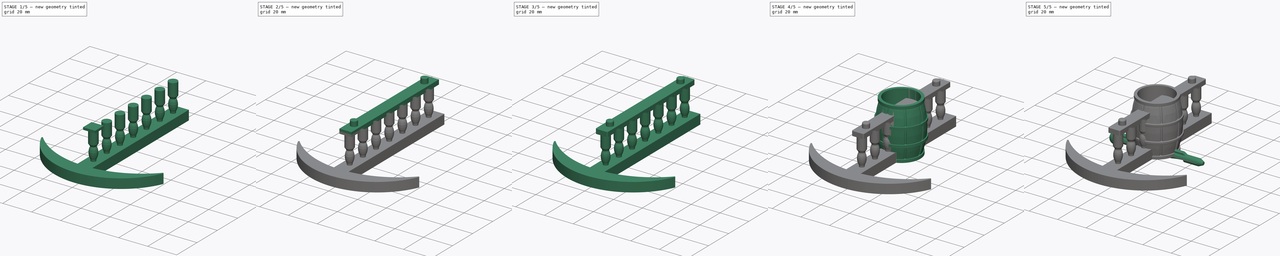
[diagram: build sequence overview — one tinted view per stage of 5, left to right]
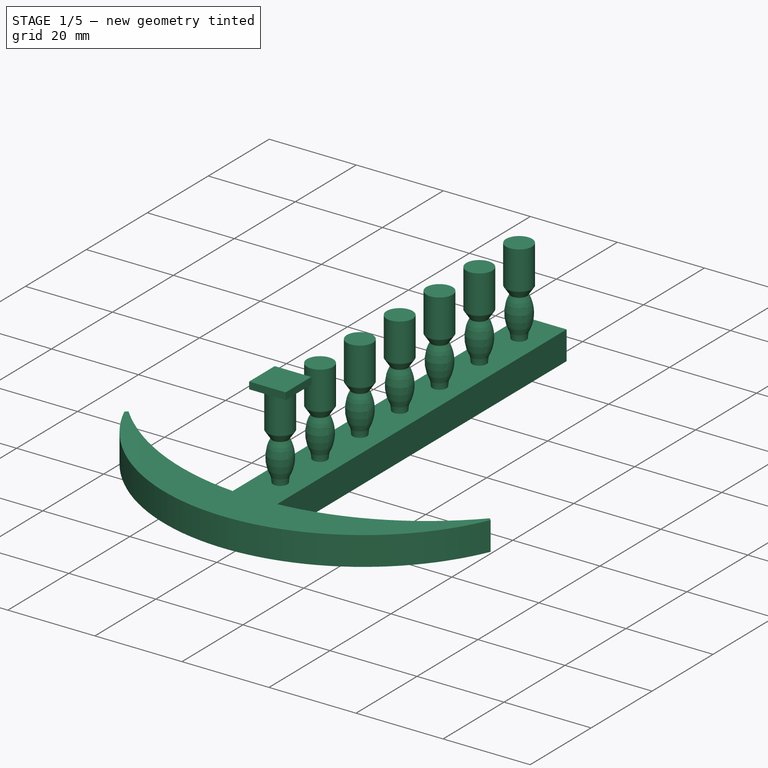
[diagram: stage 1 of 5 — iso view after this stage's code; geometry added in this stage tinted green]
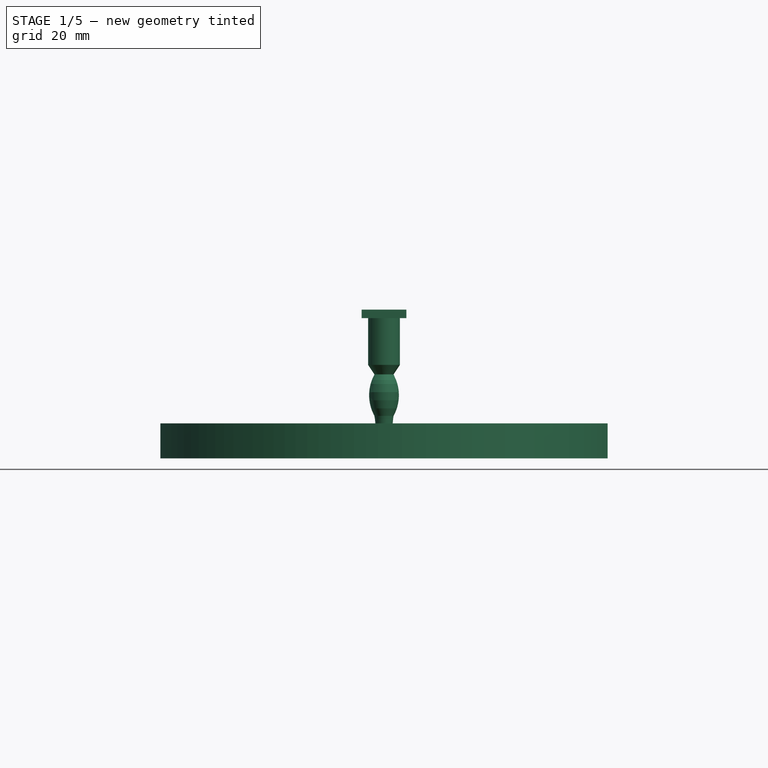
[diagram: stage 1 of 5 — front view after this stage's code; geometry added in this stage tinted green]
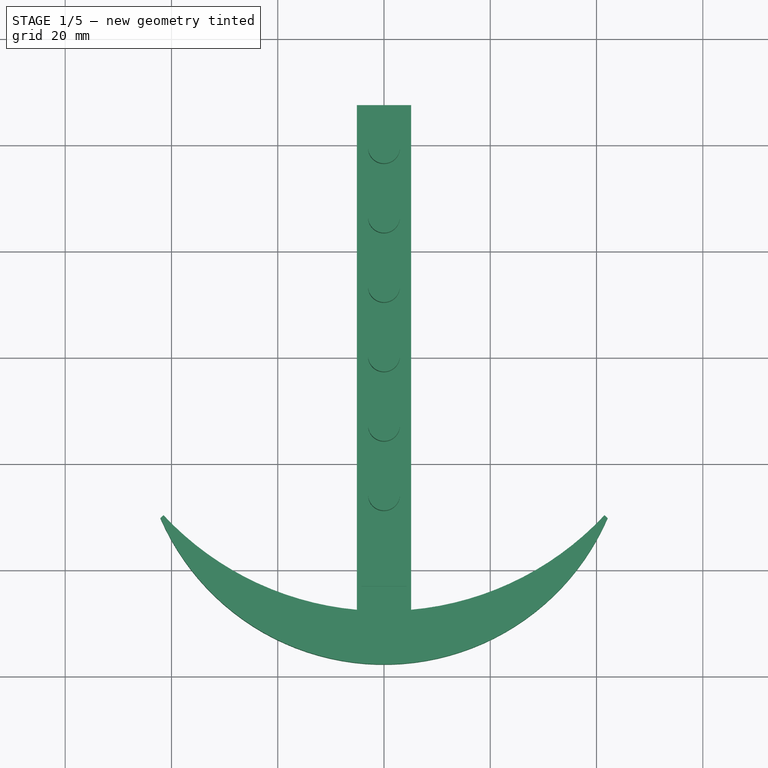
[diagram: stage 1 of 5 — top view after this stage's code; geometry added in this stage tinted green]
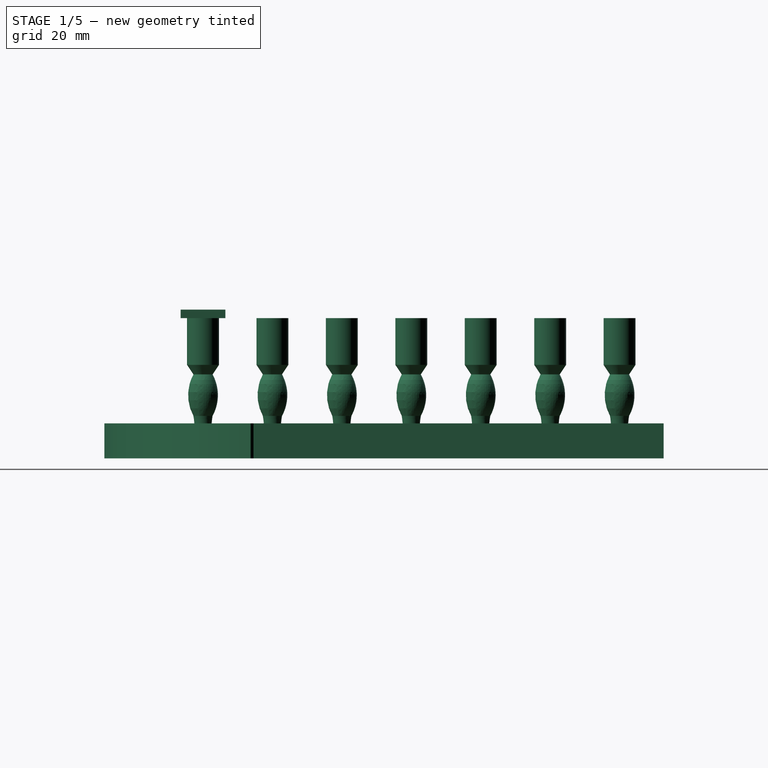
[diagram: stage 1 of 5 — right view after this stage's code; geometry added in this stage tinted green]
FCSTD DOCUMENT  (FreeCAD 0.20R29410 (Git))
Label: parts
License: All rights reserved
LicenseURL: http://en.wikipedia.org/wiki/All_rights_reserved
objects: Sketcher::SketchObject×14, PartDesign::Fillet×14, PartDesign::Pad×7, PartDesign::Revolution×4, PartDesign::Body×4, PartDesign::LinearPattern×4, PartDesign::Pocket×3, PartDesign::PolarPattern×1
note: 79 computed .brp shape members not serialized (recipe doc carries the construction recipe); baked Part::Feature solids carry a one-line shape summary decoded from their .brp

FEATURE [PartDesign::Body] Body001  label="barrel"
  Group = -> [Sketch004,Revolution001,Sketch005,Pocket002,PolarPattern,Sketch006,Revolution002,LinearPattern,Fillet001,Fillet002,Fillet003]
  Origin = -> Origin001
  Tip = -> Fillet003
FEATURE [Sketcher::SketchObject] Sketch007
  FullyConstrained = true
  MapMode = 5
  Placement = pos=(0,0,0) rot=(0.57735,0.57735,0.57735;2.0944rad)
  Support = -> [YZ_Plane002]
  sketch-geometry (4):
    g0: LineSegment StartX=-45 StartY=2 StartZ=0 EndX=45 EndY=2 EndZ=0
    g1: LineSegment StartX=45 StartY=2 StartZ=0 EndX=45 EndY=0 EndZ=0
    g2: LineSegment StartX=45 StartY=0 StartZ=0 EndX=-45 EndY=0 EndZ=0
    g3: LineSegment StartX=-45 StartY=0 StartZ=0 EndX=-45 EndY=2 EndZ=0
  constraints (11):
    c: Coincident(g0,g1)
    c: Coincident(g1,g2)
    c: Coincident(g2,g3)
    c: Coincident(g3,g0)
    c: Horizontal(g0)
    c: Vertical(g1)
    c: Vertical(g3)
    c: Symmetric(g2,g1,g-2)
    c: PointOnObject(g1,g-1)
    c: DistanceX(g2,g2) = 90
    c: DistanceY(g1,g1) = 2
FEATURE [PartDesign::Pad] Pad001
  Direction = (1,-2e-16,3e-16)
  Length = 6
  Length2 = 10
  Midplane = true
  Placement = pos=(0,0,0) rot=(0.57735,0.57735,0.57735;2.0944rad)
  Profile = -> Sketch007
  ReferenceAxis = -> Sketch007 [N_Axis]
  Type = 0
FEATURE [Sketcher::SketchObject] Sketch008
  FullyConstrained = true
  MapMode = 5
  Placement = pos=(0,0,0) rot=(0.57735,0.57735,0.57735;2.0944rad)
  Support = -> [YZ_Plane002]
  expr: Constraints[8] = 45 - 3
  sketch-geometry (4):
    g0: LineSegment StartX=-42 StartY=3.4 StartZ=0 EndX=-36.4 EndY=3.4 EndZ=0
    g1: LineSegment StartX=-36.4 StartY=3.4 StartZ=0 EndX=-36.4 EndY=2 EndZ=0
    g2: LineSegment StartX=-36.4 StartY=2 StartZ=0 EndX=-42 EndY=2 EndZ=0
    g3: LineSegment StartX=-42 StartY=2 StartZ=0 EndX=-42 EndY=3.4 EndZ=0
  constraints (12):
    c: Coincident(g0,g1)
    c: Coincident(g1,g2)
    c: Coincident(g2,g3)
    c: Coincident(g3,g0)
    c: Horizontal(g0)
    c: Horizontal(g2)
    c: Vertical(g1)
    c: Vertical(g3)
    c: DistanceX(g2,g-1) = 42
    c: DistanceX(g0,g0) = 5.6
    c: DistanceY(g1,g1) = 1.4
    c: DistanceY(g2) = 2
FEATURE [PartDesign::Pad] Pad002
  BaseFeature = -> Pad001
  Direction = (1,-2e-16,3e-16)
  Length = 5.6
  Length2 = 10
  Midplane = true
  Placement = pos=(0,0,0) rot=(0.57735,0.57735,0.57735;2.0944rad)
  Profile = -> Sketch008
  ReferenceAxis = -> Sketch008 [N_Axis]
  Type = 0
FEATURE [PartDesign::LinearPattern] LinearPattern001
  BaseFeature = -> Pad002
  Direction = -> Sketch008 [H_Axis]
  Length = 78.4
  Occurrences = 7
  Originals = -> [Pad002]
  Placement = pos=(0,0,0) rot=(0.57735,0.57735,0.57735;2.0944rad)
  expr: Length = 90 - 6 - 5.6
FEATURE [Sketcher::SketchObject] Sketch009
  AttachmentOffset = pos=(-39.2,0,0) rot=(0,0,1;0rad)
  FullyConstrained = true
  MapMode = 5
  Placement = pos=(-8.7e-15,-39.2,8.7e-15) rot=(0.57735,0.57735,0.57735;2.0944rad)
  Support = -> [YZ_Plane002]
  sketch-geometry (9):
    g0: LineSegment StartX=0 StartY=26.4 StartZ=0 EndX=3 EndY=26.4 EndZ=0
    g1: LineSegment StartX=3 StartY=26.4 StartZ=0 EndX=3 EndY=17.6 EndZ=0
    g2: LineSegment StartX=3 StartY=17.6 StartZ=0 EndX=1.8 EndY=15.8 EndZ=0
    g3: LineSegment StartX=0 StartY=26.4 StartZ=0 EndX=0 EndY=3.4 EndZ=0
    g4: LineSegment StartX=0 StartY=3.4 StartZ=0 EndX=1.8 EndY=3.4 EndZ=0
    g5: ArcOfCircle CenterX=-5.305 CenterY=11.9 CenterZ=0 NormalX=0 NormalY=0 NormalZ=1 AngleXU=0 Radius=8.105 StartAngle=5.78118 EndAngle=6.78519
    g6: ArcOfCircle CenterX=14.925 CenterY=5.7 CenterZ=0 NormalX=0 NormalY=0 NormalZ=1 AngleXU=0 Radius=13.325 StartAngle=2.96812 EndAngle=3.31507
    g7: GeomPoint X=2.8 Y=11.9 Z=0
    g8: GeomPoint X=1.6 Y=5.7 Z=0
  constraints (27):
    c: Horizontal(g0)
    c: Coincident(g0,g1)
    c: Vertical(g1)
    c: Coincident(g1,g2)
    c: Coincident(g0,g3)
    c: Vertical(g3)
    c: Coincident(g3,g4)
    c: Horizontal(g4)
    c: Coincident(g5,g2)
    c: Coincident(g6,g5)
    c: Coincident(g6,g4)
    c: PointOnObject(g3,g-2)
    c: DistanceY(g-1,g3) = 3.4
    c: DistanceX(g3,g4) = 1.8
    c: DistanceY(g4,g5) = 4.6
    c: Vertical(g4,g5)
    c: DistanceY(g3,g2) = 12.4
    c: DistanceX(g3,g2) = 1.8
    c: PointOnObject(g7,g5)
    c: Horizontal(g7,g5)
    c: DistanceX(g3,g7) = 2.8
    c: PointOnObject(g8,g6)
    c: Horizontal(g8,g6)
    c: DistanceX(g3,g8) = 1.6
    c: DistanceY(g2,g2) = 1.8
    c: DistanceX(g0,g0) = 3
    c: DistanceY(g0) = 26.4
FEATURE [PartDesign::Revolution] Revolution003
  Angle = 360
  Axis = (-2e-16,3e-16,1)
  Base = (-8.7e-15,-39.2,8.7e-15)
  BaseFeature = -> LinearPattern001
  Placement = pos=(0,0,0) rot=(0.57735,0.57735,0.57735;2.0944rad)
  Profile = -> Sketch009
  ReferenceAxis = -> Sketch009 [V_Axis]
  Reversed = true
FEATURE [PartDesign::LinearPattern] LinearPattern002
  BaseFeature = -> Revolution003
  Direction = -> Sketch009 [H_Axis]
  Length = 78.4
  Occurrences = 7
  Originals = -> [Revolution003]
  Placement = pos=(0,0,0) rot=(0.57735,0.57735,0.57735;2.0944rad)
  expr: Length = 90 - 6 - 5.6
FEATURE [Sketcher::SketchObject] Sketch010
  ExternalGeometry = -> [LinearPattern002]
  FullyConstrained = true
  MapMode = 5
  Placement = pos=(0,0,0) rot=(0.57735,0.57735,0.57735;2.0944rad)
  Support = -> [YZ_Plane002]
  expr: Constraints[12] = 45 - 3 - 5.6 / 2
  expr: Constraints[8] = 29.6 - 1.6
  sketch-geometry (5):
    g0: LineSegment StartX=-43.4 StartY=28 StartZ=0 EndX=-35 EndY=28 EndZ=0
    g1: LineSegment StartX=-35 StartY=28 StartZ=0 EndX=-35 EndY=26.4 EndZ=0
    g2: LineSegment StartX=-35 StartY=26.4 StartZ=0 EndX=-43.4 EndY=26.4 EndZ=0
    g3: LineSegment StartX=-43.4 StartY=26.4 StartZ=0 EndX=-43.4 EndY=28 EndZ=0
    g4: LineSegment StartX=-39.2 StartY=28 StartZ=0 EndX=-39.2 EndY=26.4 EndZ=0
  constraints (15):
    c: Coincident(g0,g1)
    c: Coincident(g1,g2)
    c: Coincident(g2,g3)
    c: Coincident(g3,g0)
    c: Horizontal(g0)
    c: Horizontal(g2)
    c: Vertical(g1)
    c: Vertical(g3)
    c: DistanceY(g0) = 28
    c: PointOnObject(g4,g0)
    c: PointOnObject(g4,g2)
    c: Symmetric(g0,g0,g4)
    c: DistanceX(g4,g-1) = 39.2
    c: DistanceX(g2,g2) = 8.4
    c: PointOnObject(g-3,g2)
FEATURE [PartDesign::Pad] Pad003
  BaseFeature = -> LinearPattern002
  Direction = (1,-2e-16,3e-16)
  Length = 8.4
  Length2 = 10
  Midplane = true
  Placement = pos=(0,0,0) rot=(0.57735,0.57735,0.57735;2.0944rad)
  Profile = -> Sketch010
  ReferenceAxis = -> Sketch010 [N_Axis]
  Type = 0
FEATURE [PartDesign::Body] Body002  label="railing"
  Group = -> [Sketch007,Pad001,Sketch008,Pad002,LinearPattern001,Sketch009,Revolution003,LinearPattern002,Sketch010,Pad003,LinearPattern003,Sketch011,Pad004,Sketch012,Pad005,Fillet004,Fillet005,Fillet006,Fillet007,Fillet008,Fillet009,Fillet010,Fillet011,Fillet012,Fillet013]
  Origin = -> Origin002
  Tip = -> Fillet013
FEATURE [Sketcher::SketchObject] Sketch013
  FullyConstrained = true
  MapMode = 5
  Support = -> [XY_Plane003]
  sketch-geometry (10):
    g0: LineSegment StartX=-5.1 StartY=47.5 StartZ=0 EndX=5.1 EndY=47.5 EndZ=0
    g1: LineSegment StartX=5.1 StartY=47.5 StartZ=0 EndX=5.1 EndY=-47.5 EndZ=0
    g2: LineSegment StartX=5.1 StartY=-47.5 StartZ=0 EndX=-5.1 EndY=-47.5 EndZ=0
    g3: LineSegment StartX=-5.1 StartY=-47.5 StartZ=0 EndX=-5.1 EndY=47.5 EndZ=0
    g4: ArcOfCircle CenterX=-2.6e-15 CenterY=9.04719 CenterZ=0 NormalX=0 NormalY=0 NormalZ=1 AngleXU=0 Radius=56.7767 StartAngle=3.8927 EndAngle=4.62244
    g5: ArcOfCircle CenterX=0 CenterY=-11.8573 CenterZ=0 NormalX=0 NormalY=0 NormalZ=1 AngleXU=0 Radius=45.9268 StartAngle=3.55354 EndAngle=5.87124
    g6: GeomPoint X=5.1 Y=-57.5 Z=0
    g7: LineSegment StartX=41.5 StartY=-29.7 StartZ=0 EndX=42.0847 EndY=-30.246 EndZ=0
    g8: LineSegment StartX=-41.5 StartY=-29.7 StartZ=0 EndX=-42.0847 EndY=-30.246 EndZ=0
    g9: ArcOfCircle CenterX=-2.6e-15 CenterY=9.04719 CenterZ=0 NormalX=0 NormalY=0 NormalZ=1 AngleXU=0 Radius=56.7767 StartAngle=4.80234 EndAngle=5.53208
  constraints (29):
    c: Coincident(g0,g1)
    c: Coincident(g1,g2)
    c: Coincident(g2,g3)
    c: Coincident(g3,g0)
    c: Horizontal(g2)
    c: Vertical(g3)
    c: Symmetric(g0,g0,g-2)
    c: DistanceX(g0,g0) = 10.2
    c: DistanceY(g1,g1) = 95
    c: Symmetric(g0,g1,g-1)
    c: PointOnObject(g3,g4)
    c: DistanceX(g4,g9) = 83
    c: Horizontal(g4,g9)
    c: DistanceY(g3,g4) = 17.8
    c: PointOnObject(g5,g-2)
    c: PointOnObject(g6,g5)
    c: Vertical(g6,g1)
    c: DistanceY(g6,g1) = 10
    c: Coincident(g7,g9)
    c: Coincident(g7,g5)
    c: Coincident(g8,g4)
    c: Coincident(g8,g5)
    c: Perpendicular(g4,g8)
    c: Perpendicular(g4,g7)
    c: Equal(g4,g9)
    c: PointOnObject(g4,g2)
    c: Coincident(g9,g1)
    c: Coincident(g4,g9)
    c: Distance(g7) = 0.8
FEATURE [PartDesign::Pad] Pad006
  Direction = (0,0,1)
  Length = 6.6
  Length2 = 10
  Profile = -> Sketch013
  ReferenceAxis = -> Sketch013 [N_Axis]
  Type = 0
FEATURE [PartDesign::Body] Body003  label="anchor_main"
  Group = -> [Sketch013,Pad006]
  Origin = -> Origin003
  Tip = -> Pad006
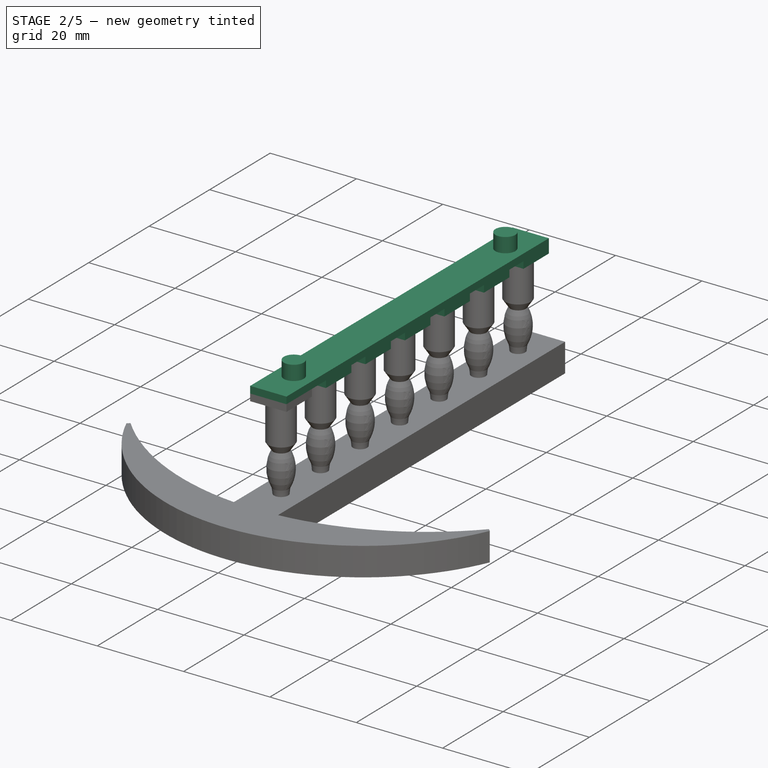
[diagram: stage 2 of 5 — iso view after this stage's code; geometry added in this stage tinted green]
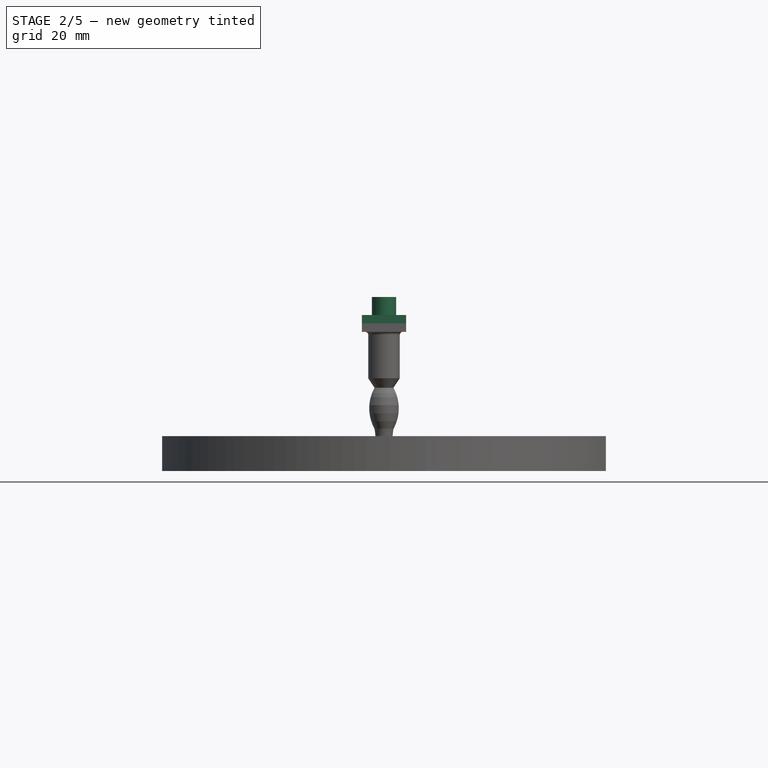
[diagram: stage 2 of 5 — front view after this stage's code; geometry added in this stage tinted green]
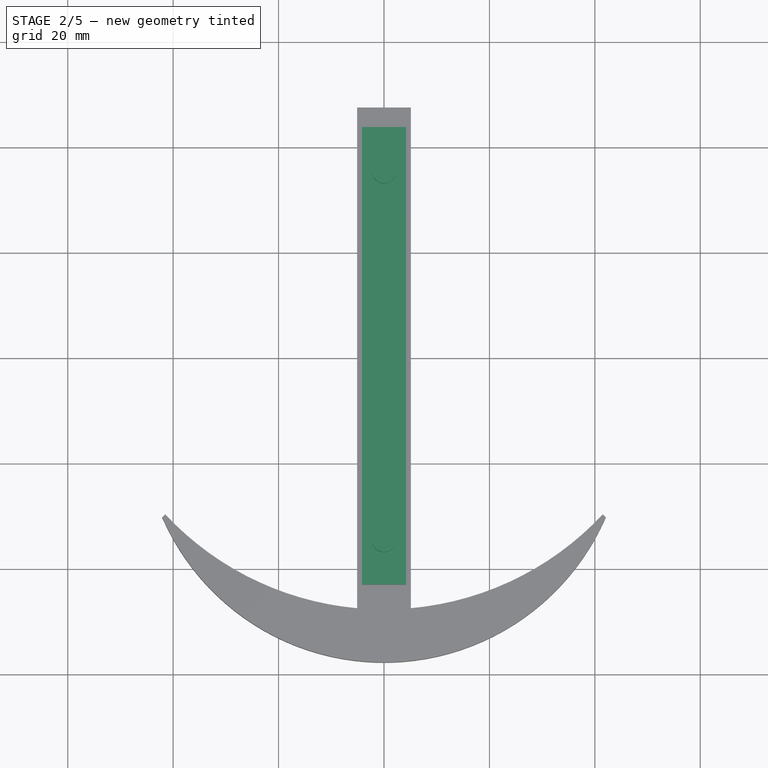
[diagram: stage 2 of 5 — top view after this stage's code; geometry added in this stage tinted green]
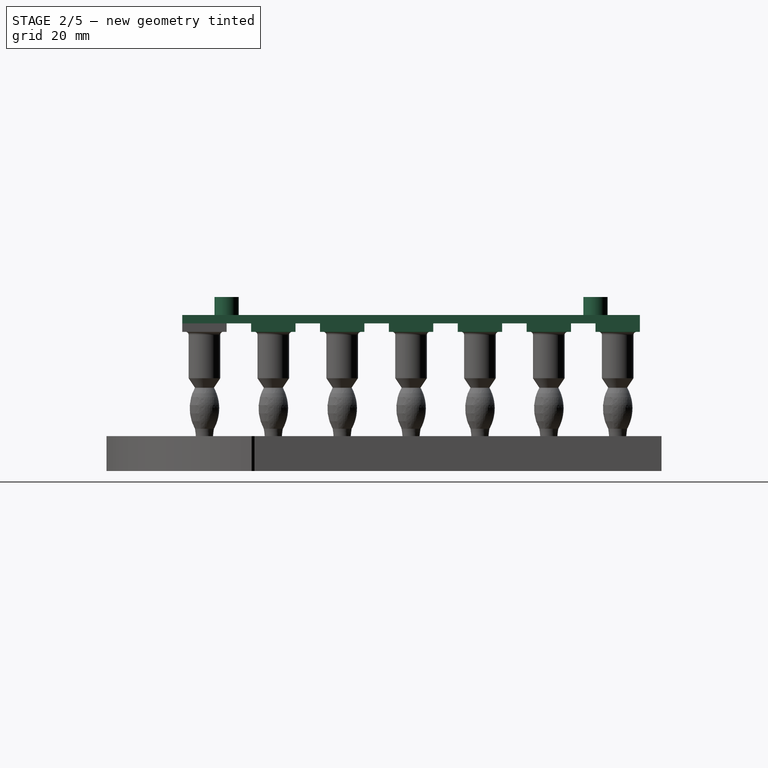
[diagram: stage 2 of 5 — right view after this stage's code; geometry added in this stage tinted green]
FEATURE [PartDesign::LinearPattern] LinearPattern003
  BaseFeature = -> Pad003
  Direction = -> Sketch010 [H_Axis]
  Length = 78.4
  Occurrences = 7
  Originals = -> [Pad003]
  Placement = pos=(0,0,0) rot=(0.57735,0.57735,0.57735;2.0944rad)
  expr: Length = 90 - 6 - 5.6
FEATURE [Sketcher::SketchObject] Sketch011
  ExternalGeometry = -> [LinearPattern003]
  FullyConstrained = true
  MapMode = 5
  Placement = pos=(0,0,0) rot=(0.57735,0.57735,0.57735;2.0944rad)
  Support = -> [YZ_Plane002]
  sketch-geometry (4):
    g0: LineSegment StartX=-43.4 StartY=29.6 StartZ=0 EndX=43.4 EndY=29.6 EndZ=0
    g1: LineSegment StartX=43.4 StartY=29.6 StartZ=0 EndX=43.4 EndY=28 EndZ=0
    g2: LineSegment StartX=43.4 StartY=28 StartZ=0 EndX=-43.4 EndY=28 EndZ=0
    g3: LineSegment StartX=-43.4 StartY=28 StartZ=0 EndX=-43.4 EndY=29.6 EndZ=0
  constraints (10):
    c: Coincident(g0,g1)
    c: Coincident(g1,g2)
    c: Coincident(g2,g3)
    c: Coincident(g3,g0)
    c: Horizontal(g2)
    c: Vertical(g1)
    c: Vertical(g3)
    c: Symmetric(g0,g0,g-2)
    c: Coincident(g2,g-3)
    c: DistanceY(g1,g1) = 1.6
FEATURE [PartDesign::Pad] Pad004
  BaseFeature = -> LinearPattern003
  Direction = (1,-2e-16,3e-16)
  Length = 8.4
  Length2 = 10
  Midplane = true
  Placement = pos=(0,0,0) rot=(0.57735,0.57735,0.57735;2.0944rad)
  Profile = -> Sketch011
  ReferenceAxis = -> Sketch011 [N_Axis]
  Type = 0
FEATURE [Sketcher::SketchObject] Sketch012
  AttachmentOffset = pos=(0,0,29.6) rot=(0,0,1;0rad)
  FullyConstrained = true
  MapMode = 5
  Placement = pos=(0,0,29.6) rot=(0,0,1;0rad)
  Support = -> [XY_Plane002]
  sketch-geometry (2):
    g0: Circle CenterX=0 CenterY=35 CenterZ=0 NormalX=0 NormalY=0 NormalZ=1 AngleXU=0 Radius=2.3
    g1: Circle CenterX=0 CenterY=-35 CenterZ=0 NormalX=0 NormalY=0 NormalZ=1 AngleXU=0 Radius=2.3
  constraints (5):
    c: PointOnObject(g0,g-2)
    c: Symmetric(g1,g0,g-1)
    c: Equal(g1,g0)
    c: Diameter(g0) = 4.6
    c: DistanceY(g1,g0) = 70
FEATURE [PartDesign::Pad] Pad005
  BaseFeature = -> Pad004
  Direction = (0,0,1)
  Length = 3.4
  Length2 = 10
  Placement = pos=(0,0,0) rot=(0.57735,0.57735,0.57735;2.0944rad)
  Profile = -> Sketch012
  ReferenceAxis = -> Sketch012 [N_Axis]
  Type = 0
FEATURE [PartDesign::Fillet] Fillet004
  Base = -> Pad005 [Edge220,Edge219,Edge223,Edge221]
  BaseFeature = -> Pad005
  Placement = pos=(0,0,0) rot=(0.57735,0.57735,0.57735;2.0944rad)
  Radius = 1.8
  SupportTransform = false
  UseAllEdges = false
FEATURE [PartDesign::Fillet] Fillet005
  Base = -> Fillet004 [Edge27,Edge10,Edge14,Edge18,Edge22,Edge30,Edge34,Edge26,Edge12,Edge16,Edge20,Edge24,Edge32,Edge36]
  BaseFeature = -> Fillet004
  Placement = pos=(0,0,0) rot=(0.57735,0.57735,0.57735;2.0944rad)
  Radius = 0.6
  SupportTransform = false
  UseAllEdges = false
FEATURE [PartDesign::Fillet] Fillet006
  Base = -> Fillet005 [Edge228,Edge230,Edge232,Edge234,Edge236,Edge238,Edge240]
  BaseFeature = -> Fillet005
  Placement = pos=(0,0,0) rot=(0.57735,0.57735,0.57735;2.0944rad)
  Radius = 0.6
  SupportTransform = false
  UseAllEdges = false
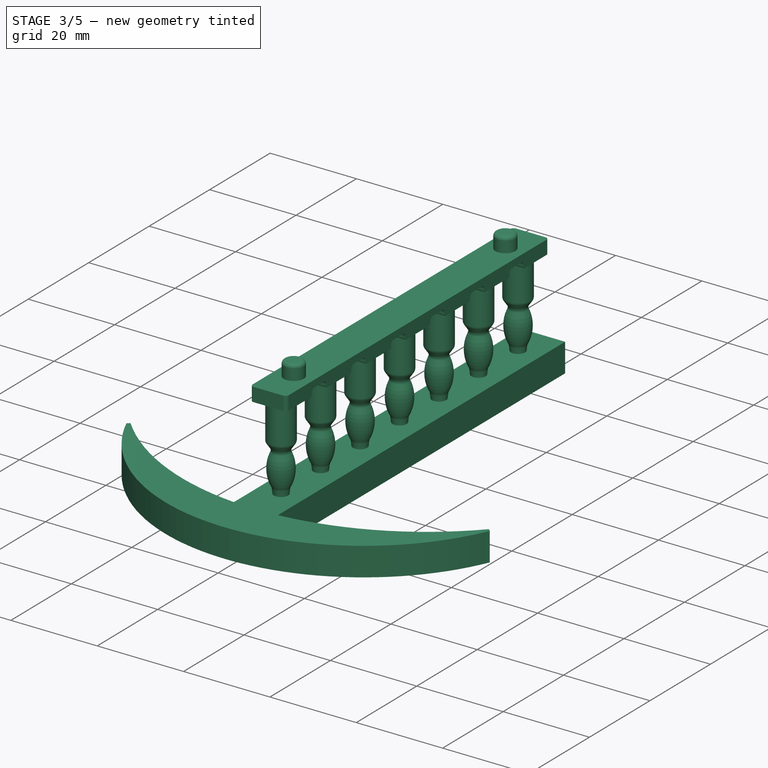
[diagram: stage 3 of 5 — iso view after this stage's code; geometry added in this stage tinted green]
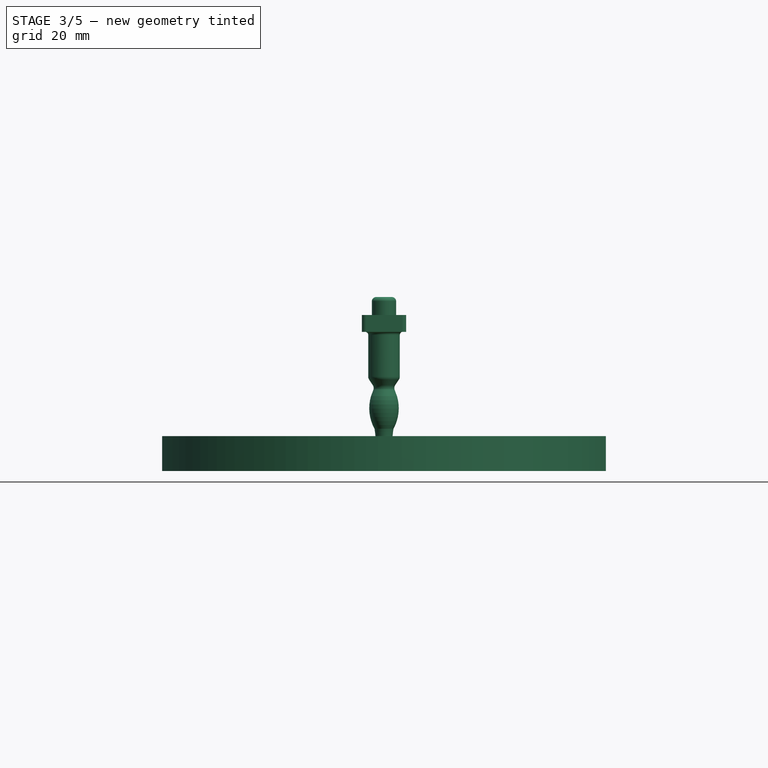
[diagram: stage 3 of 5 — front view after this stage's code; geometry added in this stage tinted green]
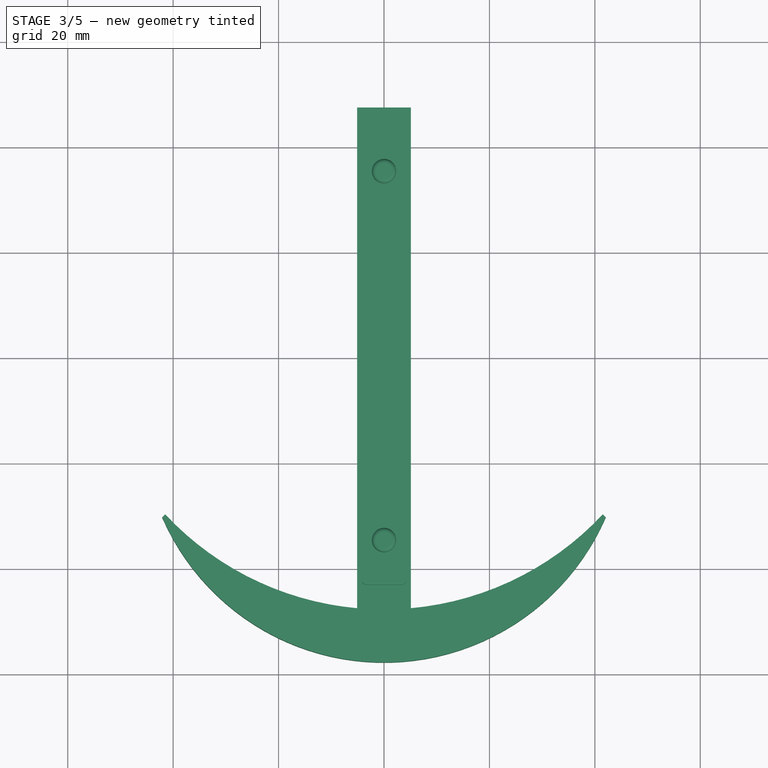
[diagram: stage 3 of 5 — top view after this stage's code; geometry added in this stage tinted green]
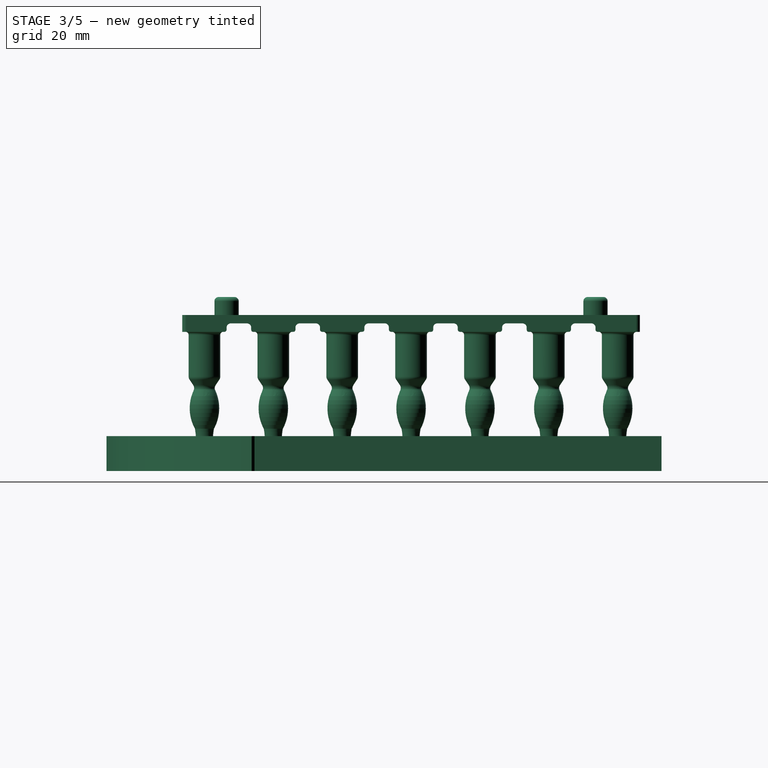
[diagram: stage 3 of 5 — right view after this stage's code; geometry added in this stage tinted green]
FEATURE [PartDesign::Fillet] Fillet007
  Base = -> Fillet006 [Edge22,Edge320,Edge323,Edge326,Edge329,Edge332,Edge335]
  BaseFeature = -> Fillet006
  Placement = pos=(0,0,0) rot=(0.57735,0.57735,0.57735;2.0944rad)
  Radius = 0.6
  SupportTransform = false
  UseAllEdges = false
FEATURE [PartDesign::Fillet] Fillet008
  Base = -> Fillet007 [Edge252,Edge238,Edge240,Edge226]
  BaseFeature = -> Fillet007
  Placement = pos=(0,0,0) rot=(0.57735,0.57735,0.57735;2.0944rad)
  Radius = 0.8
  SupportTransform = false
  UseAllEdges = false
FEATURE [PartDesign::Fillet] Fillet009
  Base = -> Fillet008 [Edge59,Edge163,Edge167,Edge171,Edge169,Edge165,Edge161]
  BaseFeature = -> Fillet008
  Placement = pos=(0,0,0) rot=(0.57735,0.57735,0.57735;2.0944rad)
  Radius = 1
  SupportTransform = false
  UseAllEdges = false
FEATURE [PartDesign::Fillet] Fillet010
  Base = -> Fillet009 [Edge9,Edge375,Edge379,Edge383,Edge381,Edge377,Edge373]
  BaseFeature = -> Fillet009
  Placement = pos=(0,0,0) rot=(0.57735,0.57735,0.57735;2.0944rad)
  Radius = 1
  SupportTransform = false
  UseAllEdges = false
FEATURE [PartDesign::Fillet] Fillet011
  Base = -> Fillet010 [Edge74,Edge169,Edge179,Edge181,Edge171,Edge161,Edge160,Edge170,Edge180,Edge178,Edge168,Edge33]
  BaseFeature = -> Fillet010
  Placement = pos=(0,0,0) rot=(0.57735,0.57735,0.57735;2.0944rad)
  Radius = 0.8
  SupportTransform = false
  UseAllEdges = false
FEATURE [PartDesign::Fillet] Fillet012
  Base = -> Fillet011 [Edge151,Edge149]
  BaseFeature = -> Fillet011
  Placement = pos=(0,0,0) rot=(0.57735,0.57735,0.57735;2.0944rad)
  Radius = 0.8
  SupportTransform = false
  UseAllEdges = false
FEATURE [PartDesign::Fillet] Fillet013
  Base = -> Fillet012 [Edge185,Edge193,Edge195,Edge199,Edge201,Edge190,Edge192,Edge181,Edge183,Edge176,Edge178,Edge171]
  BaseFeature = -> Fillet012
  Placement = pos=(0,0,0) rot=(0.57735,0.57735,0.57735;2.0944rad)
  Radius = 0.4
  SupportTransform = false
  UseAllEdges = false
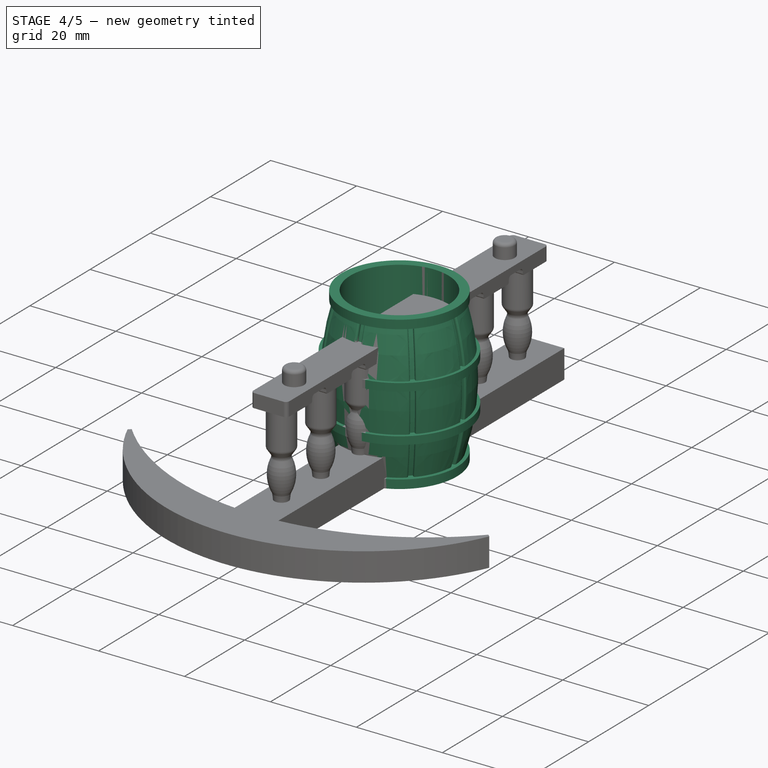
[diagram: stage 4 of 5 — iso view after this stage's code; geometry added in this stage tinted green]
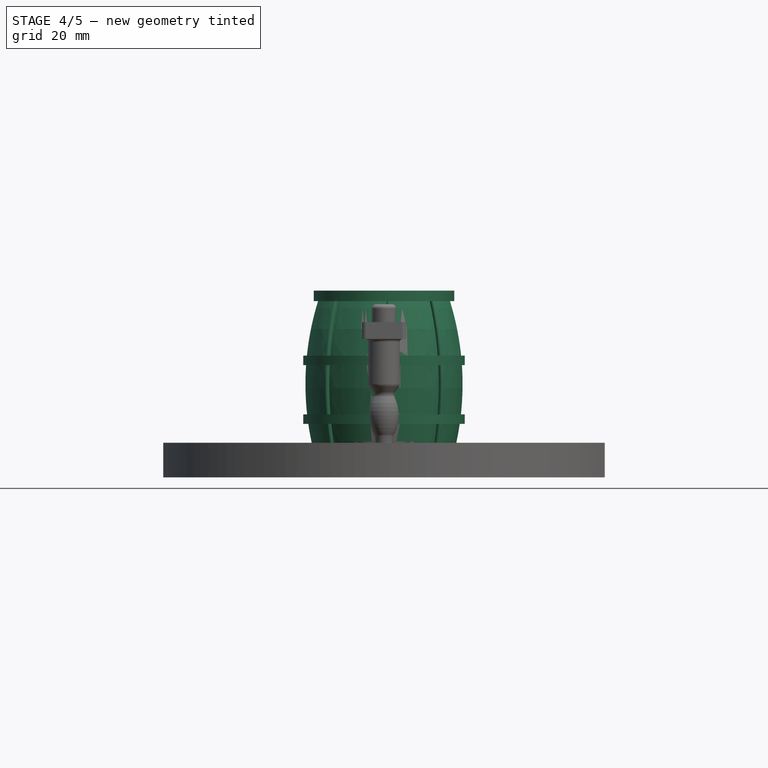
[diagram: stage 4 of 5 — front view after this stage's code; geometry added in this stage tinted green]
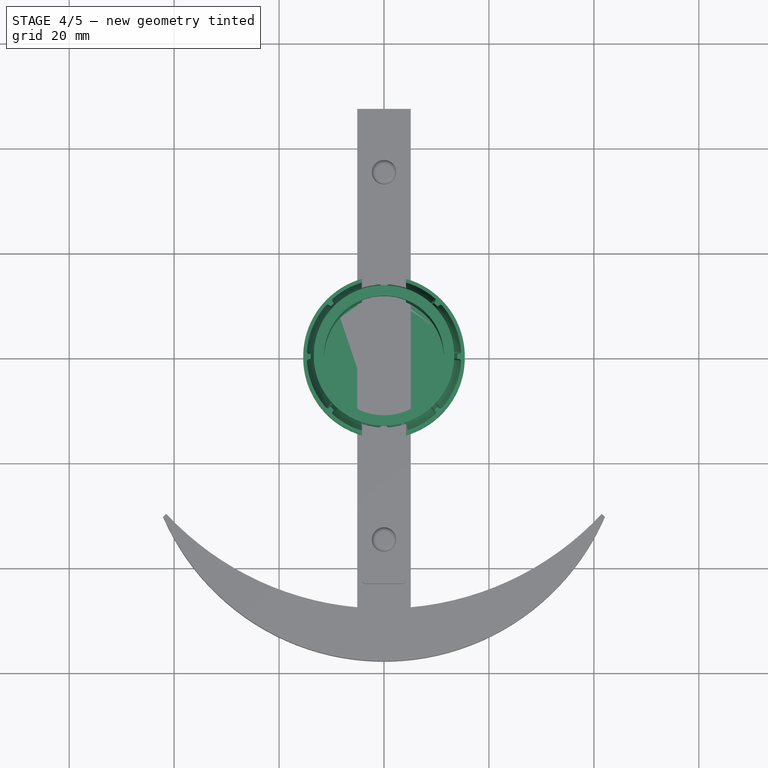
[diagram: stage 4 of 5 — top view after this stage's code; geometry added in this stage tinted green]
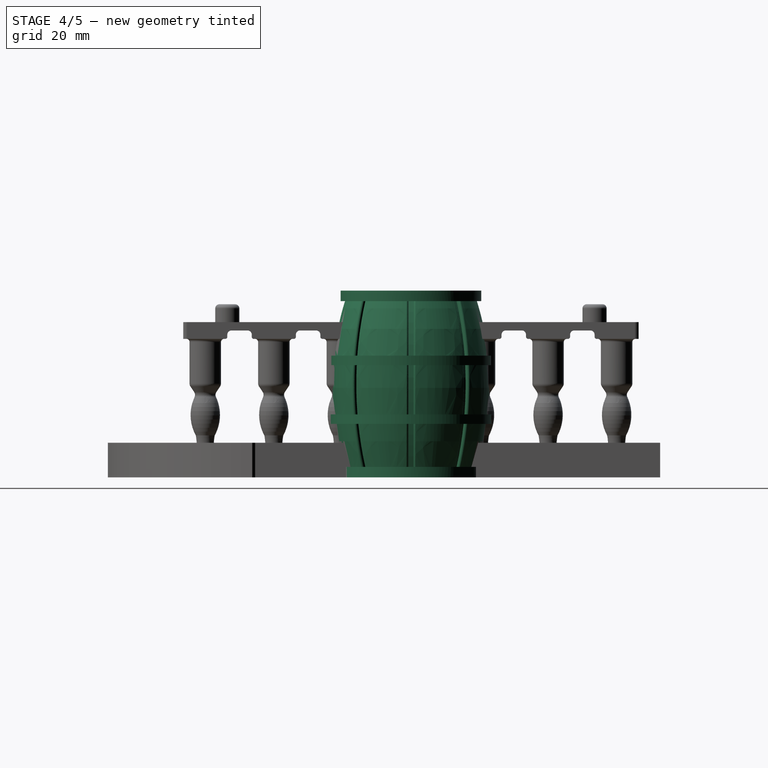
[diagram: stage 4 of 5 — right view after this stage's code; geometry added in this stage tinted green]
FEATURE [PartDesign::Body] Body  label="cannonball"
  Group = -> [Sketch,Revolution,Sketch001,Pad,Sketch002,Pocket,Sketch003,Pocket001,Fillet]
  Origin = -> Origin
  Tip = -> Fillet
FEATURE [Sketcher::SketchObject] Sketch004
  FullyConstrained = true
  MapMode = 5
  Placement = pos=(0,0,0) rot=(1,0,0;1.5708rad)
  Support = -> [XZ_Plane001]
  sketch-geometry (12):
    g0: LineSegment StartX=0 StartY=0 StartZ=0 EndX=0 EndY=3.2 EndZ=0
    g1: LineSegment StartX=0 StartY=3.2 StartZ=0 EndX=11.4 EndY=3.2 EndZ=0
    g2: LineSegment StartX=11.4 StartY=3.2 StartZ=0 EndX=11.4 EndY=35.6 EndZ=0
    g3: LineSegment StartX=11.4 StartY=35.6 StartZ=0 EndX=13.4 EndY=35.6 EndZ=0
    g4: LineSegment StartX=13.4 StartY=35.6 StartZ=0 EndX=13.4 EndY=33.6 EndZ=0
    g5: LineSegment StartX=13.4 StartY=33.6 StartZ=0 EndX=12.6 EndY=33.6 EndZ=0
    g6: LineSegment StartX=12.6 StartY=33.6 StartZ=0 EndX=12.6 EndY=2 EndZ=0
    g7: LineSegment StartX=12.6 StartY=2 StartZ=0 EndX=13.4 EndY=2 EndZ=0
    g8: LineSegment StartX=13.4 StartY=2 StartZ=0 EndX=13.4 EndY=0 EndZ=0
    g9: LineSegment StartX=13.4 StartY=0 StartZ=0 EndX=0 EndY=0 EndZ=0
    g10: ArcOfCircle CenterX=-38.2083 CenterY=17.8 CenterZ=0 NormalX=0 NormalY=0 NormalZ=1 AngleXU=0 Radius=53.2083 StartAngle=5.98169 EndAngle=6.58468
    g11: LineSegment StartX=12.6 StartY=17.8 StartZ=0 EndX=15 EndY=17.8 EndZ=0
  constraints (35):
    c: Coincident(g-1,g0)
    c: PointOnObject(g0,g-2)
    c: Coincident(g0,g1)
    c: Horizontal(g1)
    c: Coincident(g1,g2)
    c: Vertical(g2)
    c: Coincident(g2,g3)
    c: Horizontal(g3)
    c: Coincident(g3,g4)
    c: Vertical(g4)
    c: Coincident(g4,g5)
    c: Horizontal(g5)
    c: Coincident(g5,g6)
    c: Vertical(g6)
    c: Coincident(g6,g7)
    c: Horizontal(g7)
    c: Coincident(g7,g8)
    c: PointOnObject(g8,g-1)
    c: Vertical(g8)
    c: Coincident(g8,g9)
    c: Coincident(g9,g0)
    c: Vertical(g4,g7)
    c: Equal(g8,g4)
    c: DistanceY(g8,g8) = 2
    c: DistanceX(g9,g9) = 13.4
    c: DistanceY(g2) = 35.6
    c: DistanceY(g0,g0) = 3.2
    c: DistanceX(g1,g1) = 11.4
    c: Coincident(g10,g5)
    c: Coincident(g10,g7)
    c: PointOnObject(g11,g6)
    c: Symmetric(g5,g7,g11)
    c: PointOnObject(g11,g10)
    c: DistanceX(g5,g5) = 0.8
    c: DistanceX(g0,g11) = 15
FEATURE [PartDesign::Revolution] Revolution001
  Angle = 360
  Axis = (0,-2e-16,1)
  Base = (0,0,0)
  Placement = pos=(0,0,0) rot=(1,0,0;1.5708rad)
  Profile = -> Sketch004
  ReferenceAxis = -> Sketch004 [V_Axis]
  Reversed = true
FEATURE [Sketcher::SketchObject] Sketch005
  FullyConstrained = true
  MapMode = 5
  Placement = pos=(0,0,0) rot=(1,0,0;1.5708rad)
  Support = -> [XZ_Plane001]
  sketch-geometry (7):
    g0: LineSegment StartX=16.6 StartY=33.6 StartZ=0 EndX=11.8 EndY=33.6 EndZ=0
    g1: LineSegment StartX=11.8 StartY=2 StartZ=0 EndX=16.6 EndY=2 EndZ=0
    g2: ArcOfCircle CenterX=-38.2083 CenterY=17.8 CenterZ=0 NormalX=0 NormalY=0 NormalZ=1 AngleXU=0 Radius=52.445 StartAngle=5.97716 EndAngle=6.58921
    g3: ArcOfCircle CenterX=-38.2083 CenterY=17.8 CenterZ=0 NormalX=0 NormalY=0 NormalZ=1 AngleXU=0 Radius=57.0403 StartAngle=6.00252 EndAngle=6.56385
    g4: ArcOfCircle CenterX=-38.2083 CenterY=17.8 CenterZ=0 NormalX=0 NormalY=0 NormalZ=1 AngleXU=0 Radius=53.2083 StartAngle=5.98169 EndAngle=6.58468
    g5: LineSegment StartX=11.8 StartY=33.6 StartZ=0 EndX=11.8 EndY=2 EndZ=0
    g6: LineSegment StartX=11.8 StartY=17.8 StartZ=0 EndX=15 EndY=17.8 EndZ=0
  constraints (22):
    c: Horizontal(g1)
    c: DistanceY(g-1,g1) = 2
    c: Horizontal(g0)
    c: DistanceY(g0) = 33.6
    c: Coincident(g2,g0)
    c: Coincident(g2,g1)
    c: Coincident(g3,g0)
    c: Coincident(g3,g1)
    c: Coincident(g3,g2)
    c: PointOnObject(g4,g0)
    c: PointOnObject(g4,g1)
    c: Coincident(g2,g4)
    c: Coincident(g5,g0)
    c: Vertical(g5)
    c: Coincident(g5,g1)
    c: PointOnObject(g6,g5)
    c: Symmetric(g0,g1,g6)
    c: PointOnObject(g6,g4)
    c: DistanceX(g6) = 15
    c: DistanceX(g4) = 12.6
    c: DistanceX(g0,g4) = 0.8
    c: DistanceX(g4,g0) = 4
FEATURE [PartDesign::Pocket] Pocket002
  BaseFeature = -> Revolution001
  Direction = (0,1,2e-16)
  Length = 1
  Length2 = 5
  Midplane = true
  Placement = pos=(0,0,0) rot=(1,0,0;1.5708rad)
  Profile = -> Sketch005
  ReferenceAxis = -> Sketch005 [N_Axis]
  Type = 0
FEATURE [PartDesign::PolarPattern] PolarPattern
  Angle = 360
  Axis = -> Z_Axis001
  BaseFeature = -> Pocket002
  Occurrences = 8
  Originals = -> [Pocket002]
  Placement = pos=(0,0,0) rot=(1,0,0;1.5708rad)
FEATURE [Sketcher::SketchObject] Sketch006
  FullyConstrained = true
  MapMode = 5
  Placement = pos=(0,0,0) rot=(1,0,0;1.5708rad)
  Support = -> [XZ_Plane001]
  sketch-geometry (4):
    g0: LineSegment StartX=13.4 StartY=12 StartZ=0 EndX=15.4 EndY=12 EndZ=0
    g1: LineSegment StartX=15.4 StartY=12 StartZ=0 EndX=15.4 EndY=10.2 EndZ=0
    g2: LineSegment StartX=15.4 StartY=10.2 StartZ=0 EndX=13.4 EndY=10.2 EndZ=0
    g3: LineSegment StartX=13.4 StartY=10.2 StartZ=0 EndX=13.4 EndY=12 EndZ=0
  constraints (12):
    c: Coincident(g0,g1)
    c: Coincident(g1,g2)
    c: Coincident(g2,g3)
    c: Coincident(g3,g0)
    c: Horizontal(g0)
    c: Horizontal(g2)
    c: Vertical(g1)
    c: Vertical(g3)
    c: DistanceY(g1,g1) = 1.8
    c: DistanceX(g-1,g1) = 15.4
    c: DistanceX(g0,g0) = 2
    c: DistanceY(g1) = 10.2
FEATURE [PartDesign::Revolution] Revolution002
  Angle = 360
  Axis = (0,-2e-16,1)
  Base = (0,0,0)
  BaseFeature = -> PolarPattern
  Placement = pos=(0,0,0) rot=(1,0,0;1.5708rad)
  Profile = -> Sketch006
  ReferenceAxis = -> Sketch006 [V_Axis]
  Reversed = true
FEATURE [PartDesign::LinearPattern] LinearPattern
  BaseFeature = -> Revolution002
  Direction = -> Sketch006 [V_Axis]
  Length = 11.2
  Occurrences = 2
  Originals = -> [Revolution002]
  Placement = pos=(0,0,0) rot=(1,0,0;1.5708rad)
FEATURE [PartDesign::Fillet] Fillet001
  Base = -> LinearPattern [Edge325,Edge228,Edge125,Edge119,Edge221,Edge318,Edge333,Edge236,Edge66,Edge310,Edge213,Edge114,Edge317,Edge220,Edge120,Edge309,Edge212,Edge115,Edge205,Edge302,Edge109,Edge301,Edge204,Edge110,Edge104,Edge197,Edge294,Edge286,Edge189,Edge99,Edge196,Edge105,Edge293,Edge285,Edge188,Edge100,Edge237,Edge334,Edge33,Edge277,+8 more]
  BaseFeature = -> LinearPattern
  Placement = pos=(0,0,0) rot=(1,0,0;1.5708rad)
  Radius = 0.4
  SupportTransform = false
  UseAllEdges = false
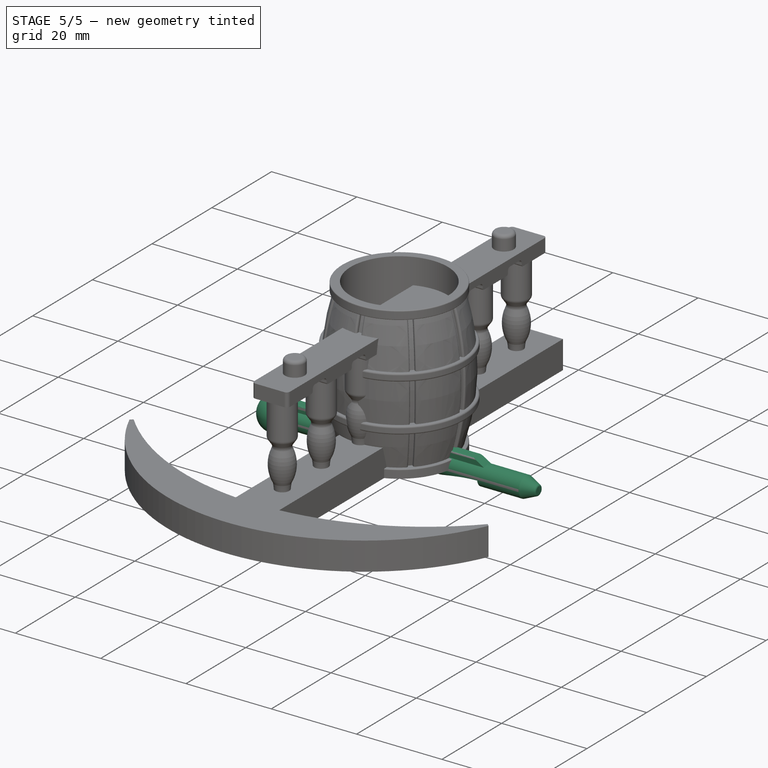
[diagram: stage 5 of 5 — iso view after this stage's code; geometry added in this stage tinted green]
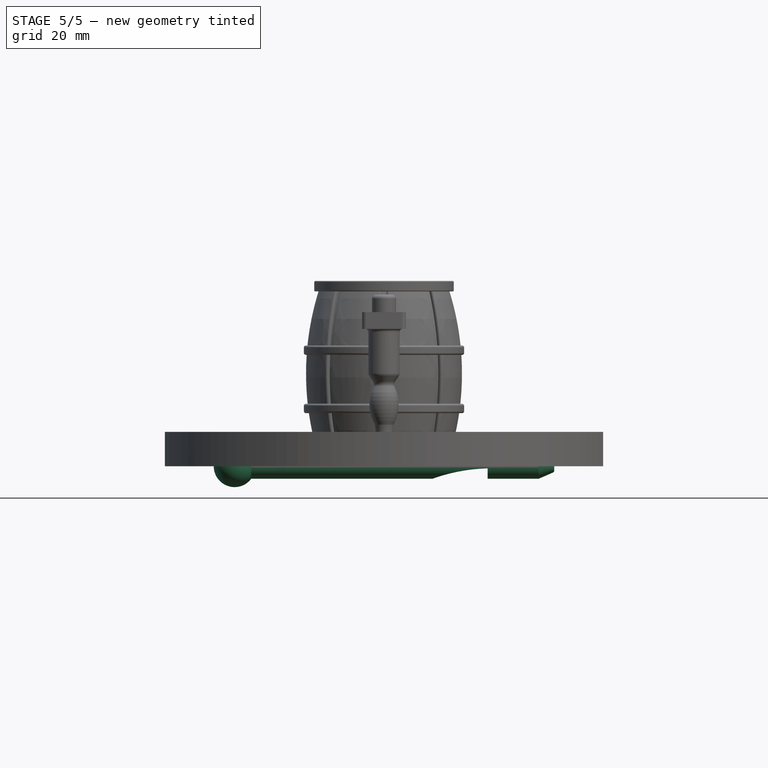
[diagram: stage 5 of 5 — front view after this stage's code; geometry added in this stage tinted green]
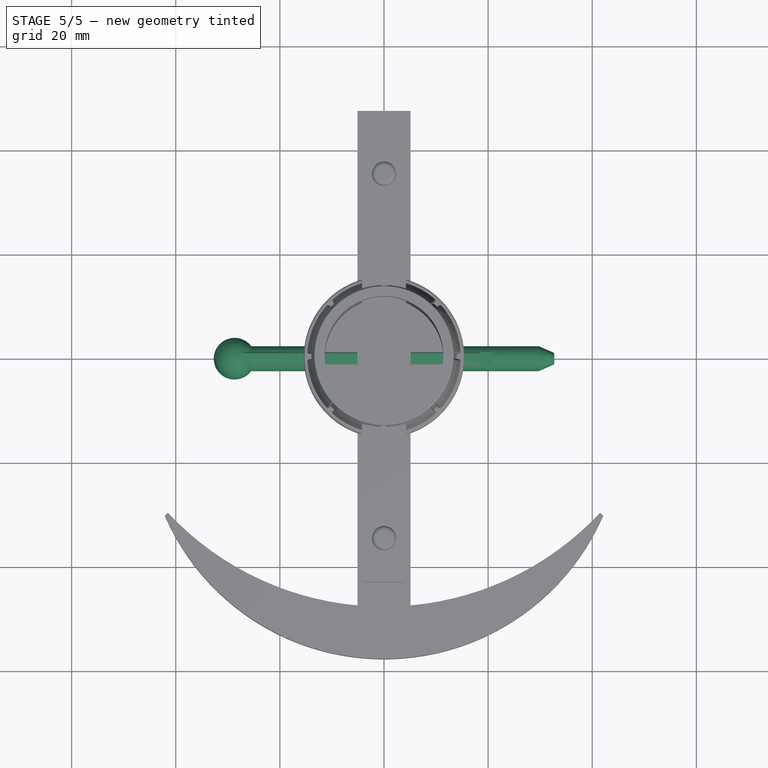
[diagram: stage 5 of 5 — top view after this stage's code; geometry added in this stage tinted green]
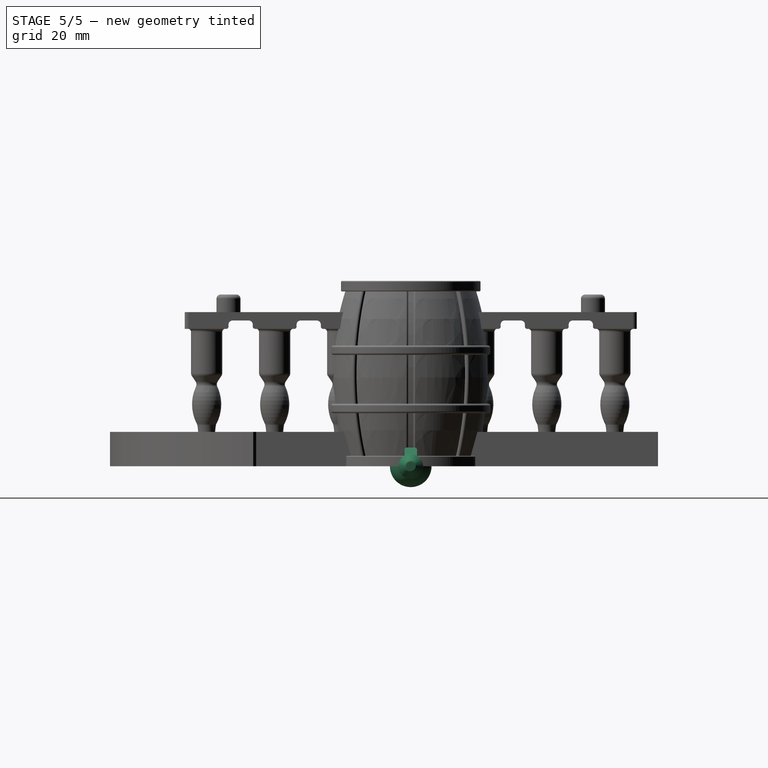
[diagram: stage 5 of 5 — right view after this stage's code; geometry added in this stage tinted green]
FEATURE [Sketcher::SketchObject] Sketch
  FullyConstrained = true
  MapMode = 5
  Placement = pos=(0,0,0) rot=(1,0,0;1.5708rad)
  Support = -> [XZ_Plane]
  sketch-geometry (5):
    g0: ArcOfCircle CenterX=-28.7 CenterY=0 CenterZ=0 NormalX=0 NormalY=0 NormalZ=1 AngleXU=0 Radius=4 StartAngle=0.643501 EndAngle=3.14159
    g1: LineSegment StartX=-25.5 StartY=2.4 StartZ=0 EndX=29.7 EndY=2.4 EndZ=0
    g2: LineSegment StartX=29.7 StartY=2.4 StartZ=0 EndX=32.7 EndY=1.1 EndZ=0
    g3: LineSegment StartX=32.7 StartY=1.1 StartZ=0 EndX=32.7 EndY=-2.1096e-12 EndZ=0
    g4: LineSegment StartX=32.7 StartY=-2.1096e-12 StartZ=0 EndX=-32.7 EndY=5e-16 EndZ=0
  constraints (15):
    c: PointOnObject(g0,g-1)
    c: PointOnObject(g0,g-1)
    c: Horizontal(g1)
    c: Coincident(g1,g2)
    c: Coincident(g2,g3)
    c: Vertical(g3)
    c: Coincident(g3,g4)
    c: Coincident(g4,g0)
    c: Coincident(g0,g1)
    c: Radius(g0) = 4
    c: DistanceX(g4,g4) = 65.4
    c: DistanceY(g-1,g0) = 2.4
    c: Symmetric(g0,g3,g-1)
    c: DistanceX(g1,g3) = 3
    c: DistanceY(g3,g3) = 1.1
FEATURE [PartDesign::Revolution] Revolution
  Angle = 360
  Axis = (1,0,0)
  Base = (0,0,0)
  Placement = pos=(0,0,0) rot=(1,0,0;1.5708rad)
  Profile = -> Sketch
  ReferenceAxis = -> Sketch [H_Axis]
FEATURE [Sketcher::SketchObject] Sketch001
  FullyConstrained = false
  MapMode = 5
  Support = -> [XY_Plane]
  sketch-geometry (5):
    g0: LineSegment StartX=-28.64 StartY=1.2 StartZ=0 EndX=20.7 EndY=1.2 EndZ=0
    g1: LineSegment StartX=20.7 StartY=1.2 StartZ=0 EndX=20.7 EndY=-1.2 EndZ=0
    g2: LineSegment StartX=20.7 StartY=-1.2 StartZ=0 EndX=-28.64 EndY=-1.2 EndZ=0
    g3: LineSegment StartX=-28.64 StartY=-1.2 StartZ=0 EndX=-28.64 EndY=1.2 EndZ=0
    g4: LineSegment StartX=32.7 StartY=0 StartZ=0 EndX=32.7 EndY=-3.60512 EndZ=0
  constraints (14):
    c: Coincident(g0,g1)
    c: Coincident(g1,g2)
    c: Coincident(g2,g3)
    c: Coincident(g3,g0)
    c: Horizontal(g0)
    c: Horizontal(g2)
    c: Vertical(g3)
    c: Symmetric(g0,g1,g-1)
    c: DistanceY(g3,g3) = 2.4
    c: Vertical(g4)
    c: DistanceX(g4) = 32.7
    c: PointOnObject(g4,g-1)
    c: DistanceX(g0,g4) = 12
    c: DistanceX(g0,g-1) = 28.64
FEATURE [PartDesign::Pad] Pad
  BaseFeature = -> Revolution
  Direction = (0,0,1)
  Length = 3.6
  Length2 = 10
  Placement = pos=(0,0,0) rot=(1,0,0;1.5708rad)
  Profile = -> Sketch001
  ReferenceAxis = -> Sketch001 [N_Axis]
  Type = 0
  expr: Length = 6 - 2.4
FEATURE [Sketcher::SketchObject] Sketch002
  ExternalGeometry = -> [Pad]
  FullyConstrained = true
  MapMode = 5
  Placement = pos=(0,-1.2,5e-16) rot=(1,0,0;1.5708rad)
  Support = -> [Pad]
  sketch-geometry (3):
    g0: LineSegment StartX=20.7 StartY=2.07846 StartZ=0 EndX=20.7 EndY=3.6 EndZ=0
    g1: LineSegment StartX=20.7 StartY=3.6 StartZ=0 EndX=18.1 EndY=3.6 EndZ=0
    g2: LineSegment StartX=18.1 StartY=3.6 StartZ=0 EndX=20.7 EndY=2.07846 EndZ=0
  constraints (7):
    c: Coincident(g0,g1)
    c: Horizontal(g1)
    c: Coincident(g1,g2)
    c: Coincident(g2,g0)
    c: Coincident(g0,g-4)
    c: Coincident(g0,g-4)
    c: DistanceX(g1,g1) = 2.6
FEATURE [PartDesign::Pocket] Pocket
  BaseFeature = -> Pad
  Direction = (0,1,-2e-16)
  Length = 5
  Length2 = 5
  Placement = pos=(0,0,0) rot=(1,0,0;1.5708rad)
  Profile = -> Sketch002
  ReferenceAxis = -> Sketch002 [N_Axis]
  Type = 0
FEATURE [Sketcher::SketchObject] Sketch003
  FullyConstrained = false
  MapMode = 5
  Placement = pos=(0,0,0) rot=(1,0,0;1.5708rad)
  Support = -> [XZ_Plane]
  sketch-geometry (6):
    g0: LineSegment StartX=32.7 StartY=0 StartZ=0 EndX=32.7 EndY=-2.4 EndZ=0
    g1: LineSegment StartX=32.7 StartY=-2.4 StartZ=0 EndX=0 EndY=-2.4 EndZ=0
    g2: LineSegment StartX=19.9 StartY=-2.4 StartZ=0 EndX=19.9 EndY=-0.4 EndZ=0
    g3: ArcOfCircle CenterX=20.8527 CenterY=-34.5396 CenterZ=0 NormalX=0 NormalY=0 NormalZ=1 AngleXU=0 Radius=34.1529 StartAngle=1.5987 EndAngle=1.91587
    g4: LineSegment StartX=19.9 StartY=-0.4 StartZ=0 EndX=9.3 EndY=-0.4 EndZ=0
    g5: LineSegment StartX=9.3 StartY=-2.4 StartZ=0 EndX=19.9 EndY=-2.4 EndZ=0
  constraints (19):
    c: PointOnObject(g0,g-1)
    c: Vertical(g0)
    c: DistanceX(g0) = 32.7
    c: DistanceY(g0,g0) = 2.4
    c: Coincident(g1,g0)
    c: PointOnObject(g1,g-2)
    c: Horizontal(g1)
    c: PointOnObject(g2,g1)
    c: Vertical(g2)
    c: DistanceX(g2,g0) = 12.8
    c: DistanceY(g2,g2) = 2
    c: Coincident(g3,g2)
    c: PointOnObject(g3,g1)
    c: DistanceX(g3,g2) = 10.6
    c: Coincident(g4,g2)
    c: Horizontal(g4)
    c: Vertical(g3,g4)
    c: Coincident(g5,g3)
    c: Coincident(g5,g2)
FEATURE [PartDesign::Pocket] Pocket001
  BaseFeature = -> Pocket
  Direction = (0,1,-2e-16)
  Length = 5
  Length2 = 5
  Midplane = true
  Placement = pos=(0,0,0) rot=(1,0,0;1.5708rad)
  Profile = -> Sketch003
  ReferenceAxis = -> Sketch003 [N_Axis]
  Type = 1
FEATURE [PartDesign::Fillet] Fillet
  Base = -> Pocket001 [Edge17,Edge24,Edge8,Edge11]
  BaseFeature = -> Pocket001
  Placement = pos=(0,0,0) rot=(1,0,0;1.5708rad)
  Radius = 0.4
  SupportTransform = false
  UseAllEdges = false
FEATURE [PartDesign::Fillet] Fillet002
  Base = -> Fillet001 [Edge551,Edge505,Edge16]
  BaseFeature = -> Fillet001
  Placement = pos=(0,0,0) rot=(1,0,0;1.5708rad)
  Radius = 0.2
  SupportTransform = false
  UseAllEdges = false
FEATURE [PartDesign::Fillet] Fillet003
  Base = -> Fillet002 [Edge115,Edge220,Edge386,Edge387]
  BaseFeature = -> Fillet002
  Placement = pos=(0,0,0) rot=(1,0,0;1.5708rad)
  Radius = 0.4
  SupportTransform = false
  UseAllEdges = false
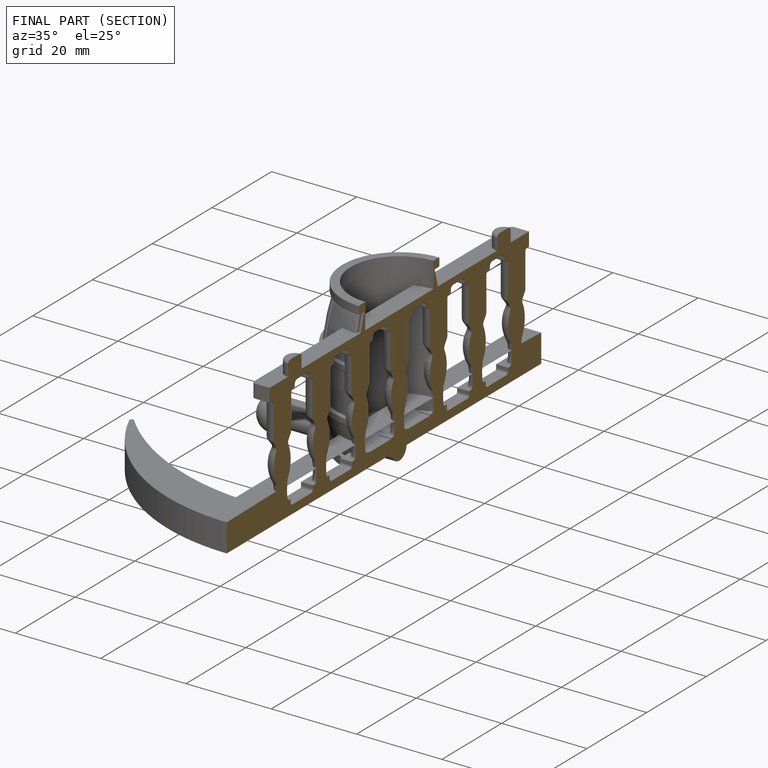
[diagram: finished part — half-section view (interior)]
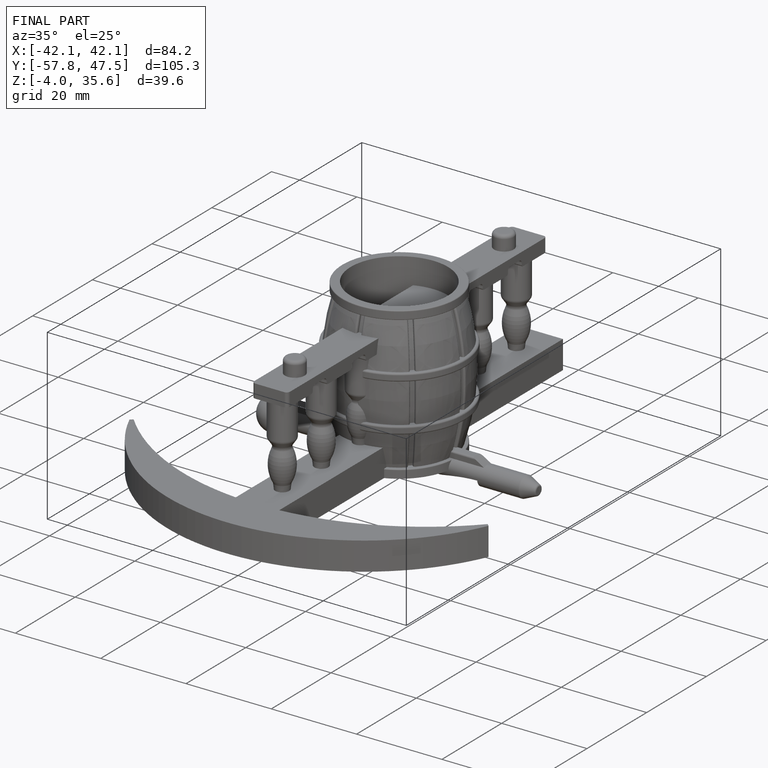
[diagram: finished part — iso view with bounding-box wireframe]
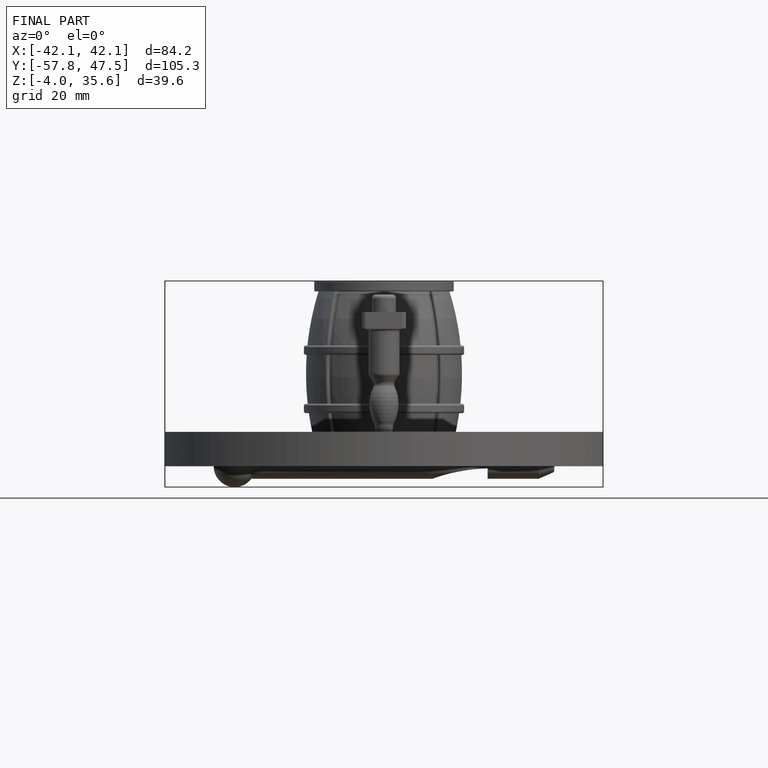
[diagram: finished part — front view with bounding-box wireframe]
